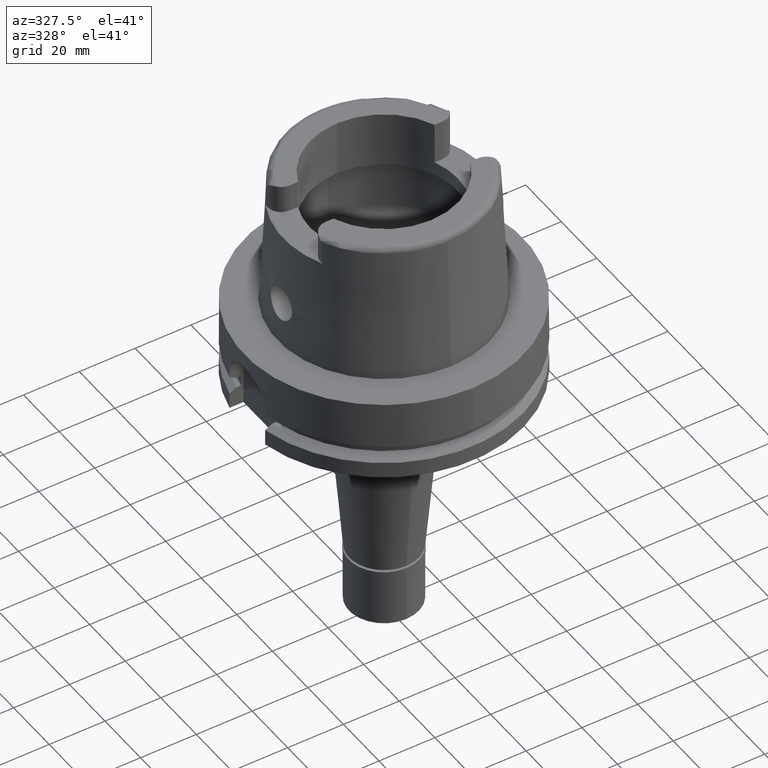
[diagram: clean part render]
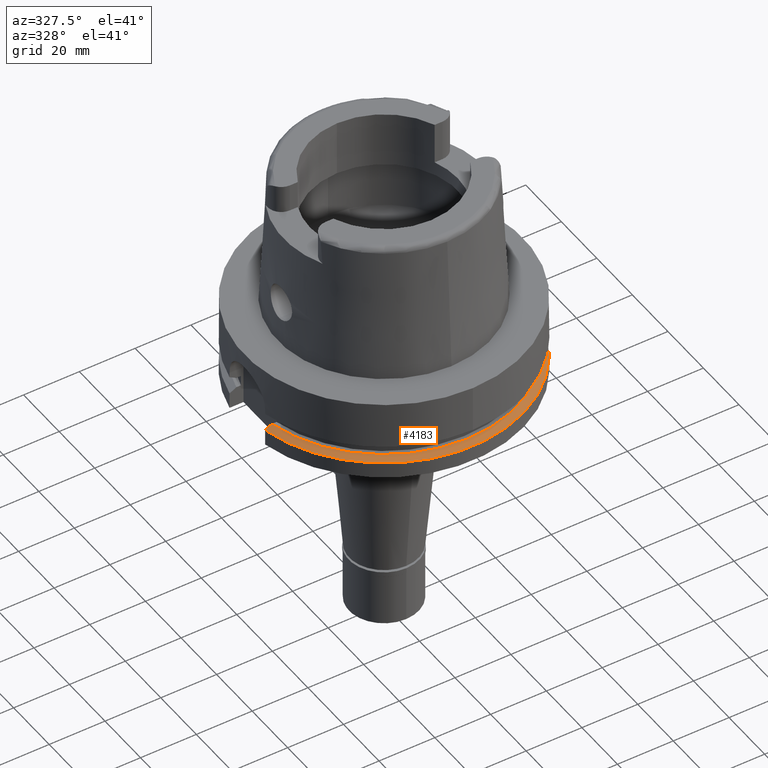
[diagram: same view with one face highlighted and labeled with its STEP entity id]
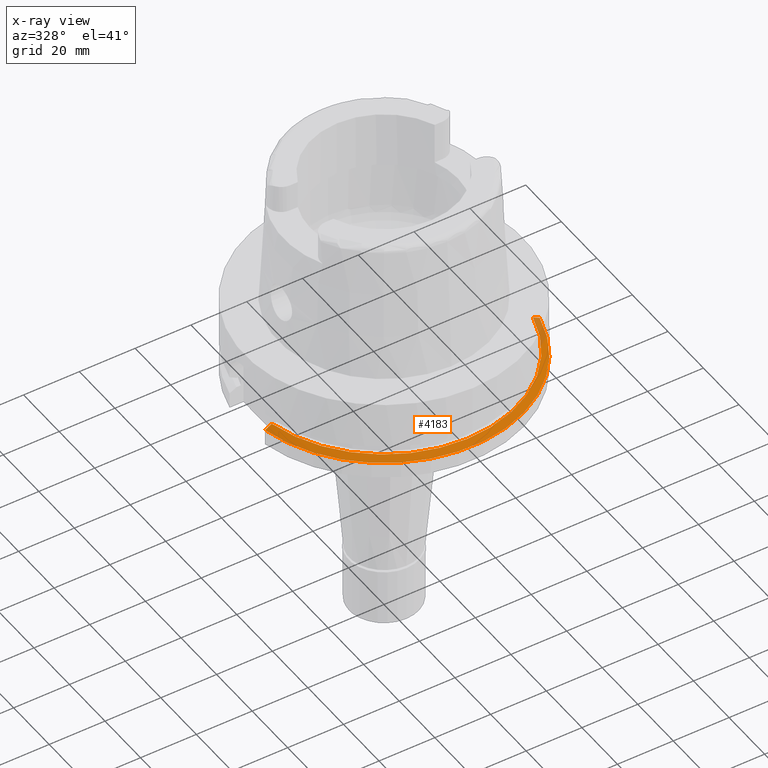
[diagram: x-ray of the same camera — body ghosted, the highlighted face saturated]
A machine part, auxiliary view. The second image highlights one B-rep face of the part: STEP entity #4183.
The next image is the same camera in x-ray: the body ghosted, the highlighted face saturated — about 5% of this face is hidden behind the body in this view.
In plain terms, the highlighted conical surface has half-angle 60 deg.
Its self-contained STEP definition (entity closure, byte-faithful):
#218 = CARTESIAN_POINT ( 'NONE',  ( -46.56083740329999898, -10.00000000000000000, -21.87500000000000000 ) ) ;
#386 = DIRECTION ( 'NONE',  ( 0.0000000000000000000, 0.0000000000000000000, -1.000000000000000000 ) ) ;
#422 = DIRECTION ( 'NONE',  ( 0.0000000000000000000, -1.000000000000000000, 0.0000000000000000000 ) ) ;
#489 = AXIS2_PLACEMENT_3D ( 'NONE', #2073, #386, #422 ) ;
#532 = EDGE_CURVE ( 'NONE', #1433, #2487, #2799, .T. ) ;
#603 = CARTESIAN_POINT ( 'NONE',  ( -47.37076227628000424, -10.00000000000000000, -22.33230648793000128 ) ) ;
#844 = VERTEX_POINT ( 'NONE', #2805 ) ;
#900 = CARTESIAN_POINT ( 'NONE',  ( -48.98979485565999425, -10.00000000000000000, -23.24759526419000011 ) ) ;
#964 = AXIS2_PLACEMENT_3D ( 'NONE', #4713, #1681, #3444 ) ;
#1034 = B_SPLINE_CURVE_WITH_KNOTS ( 'NONE', 3,
 ( #4918, #4155, #3648, #603, #5342, #218 ),
 .UNSPECIFIED., .F., .F.,
 ( 4, 1, 1, 4 ),
 ( 0.0000000000000000000, 0.3333333333333000081, 0.6666666666667000474, 1.000000000000000000 ),
 .UNSPECIFIED. ) ;
#1433 = VERTEX_POINT ( 'NONE', #2640 ) ;
#1625 = CARTESIAN_POINT ( 'NONE',  ( 48.50399904748000068, -11.00000000000000000, -23.09496975037999889 ) ) ;
#1681 = DIRECTION ( 'NONE',  ( 0.0000000000000000000, 0.0000000000000000000, -1.000000000000000000 ) ) ;
#1949 = EDGE_LOOP ( 'NONE', ( #2080, #3208, #4569, #3957 ) ) ;
#2073 = CARTESIAN_POINT ( 'NONE',  ( 0.0000000000000000000, 0.0000000000000000000, -21.87500000000000000 ) ) ;
#2074 = CARTESIAN_POINT ( 'NONE',  ( 46.60605711264999940, -11.00000000000000000, -22.02738808210999721 ) ) ;
#2080 = ORIENTED_EDGE ( 'NONE', *, *, #2839, .F. ) ;
#2472 = CONICAL_SURFACE ( 'NONE', #2815, 48.81129763208999606, 1.047197551196400456 ) ;
#2487 = VERTEX_POINT ( 'NONE', #3754 ) ;
#2640 = CARTESIAN_POINT ( 'NONE',  ( 46.33477721644000269, -11.00000000000000000, -21.87500000000000000 ) ) ;
#2703 = CARTESIAN_POINT ( 'NONE',  ( 0.0000000000000000000, 0.0000000000000000000, -22.56129763209999695 ) ) ;
#2799 = CIRCLE ( 'NONE', #489, 47.62259526418999656 ) ;
#2805 = CARTESIAN_POINT ( 'NONE',  ( 48.77499359303000404, -11.00000000000000000, -23.24759526419000011 ) ) ;
#2815 = AXIS2_PLACEMENT_3D ( 'NONE', #2703, #3150, #4085 ) ;
#2839 = EDGE_CURVE ( 'NONE', #3799, #2487, #1034, .T. ) ;
#3150 = DIRECTION ( 'NONE',  ( 0.0000000000000000000, 0.0000000000000000000, -1.000000000000000000 ) ) ;
#3208 = ORIENTED_EDGE ( 'NONE', *, *, #5470, .F. ) ;
#3365 = B_SPLINE_CURVE_WITH_KNOTS ( 'NONE', 3,
 ( #3727, #2074, #5081, #5023, #1625, #3848 ),
 .UNSPECIFIED., .F., .F.,
 ( 4, 1, 1, 4 ),
 ( 0.0000000000000000000, 0.3333333333333000081, 0.6666666666667000474, 1.000000000000000000 ),
 .UNSPECIFIED. ) ;
#3444 = DIRECTION ( 'NONE',  ( 0.9754998718605770724, -0.2199999999999950051, 0.0000000000000000000 ) ) ;
#3648 = CARTESIAN_POINT ( 'NONE',  ( -48.18041161677000161, -10.00000000000000000, -22.78984413388999997 ) ) ;
#3727 = CARTESIAN_POINT ( 'NONE',  ( 46.33477721644000269, -11.00000000000000000, -21.87500000000000000 ) ) ;
#3754 = CARTESIAN_POINT ( 'NONE',  ( -46.56083740329999898, -10.00000000000000000, -21.87500000000000000 ) ) ;
#3799 = VERTEX_POINT ( 'NONE', #900 ) ;
#3803 = EDGE_CURVE ( 'NONE', #1433, #844, #3365, .T. ) ;
#3848 = CARTESIAN_POINT ( 'NONE',  ( 48.77499359303000404, -11.00000000000000000, -23.24759526419000011 ) ) ;
#3957 = ORIENTED_EDGE ( 'NONE', *, *, #532, .T. ) ;
#4085 = DIRECTION ( 'NONE',  ( 0.0000000000000000000, -1.000000000000000000, 0.0000000000000000000 ) ) ;
#4155 = CARTESIAN_POINT ( 'NONE',  ( -48.72002593965999750, -10.00000000000000000, -23.09499092030999989 ) ) ;
#4183 = ADVANCED_FACE ( 'NONE', ( #4872 ), #2472, .T. ) ;
#4569 = ORIENTED_EDGE ( 'NONE', *, *, #3803, .F. ) ;
#4713 = CARTESIAN_POINT ( 'NONE',  ( 0.0000000000000000000, 0.0000000000000000000, -23.24759526419000011 ) ) ;
#4872 = FACE_OUTER_BOUND ( 'NONE', #1949, .T. ) ;
#4918 = CARTESIAN_POINT ( 'NONE',  ( -48.98979485565999425, -10.00000000000000000, -23.24759526419000011 ) ) ;
#5023 = CARTESIAN_POINT ( 'NONE',  ( 47.96191616323000062, -11.00000000000000000, -22.78979543230000004 ) ) ;
#5081 = CARTESIAN_POINT ( 'NONE',  ( 47.14851446811000102, -11.00000000000000000, -22.33225649733000040 ) ) ;
#5342 = CARTESIAN_POINT ( 'NONE',  ( -46.83084020607000042, -10.00000000000000000, -22.02741066863000086 ) ) ;
#5364 = CIRCLE ( 'NONE', #964, 50.00000000000000711 ) ;
#5470 = EDGE_CURVE ( 'NONE', #844, #3799, #5364, .T. ) ;